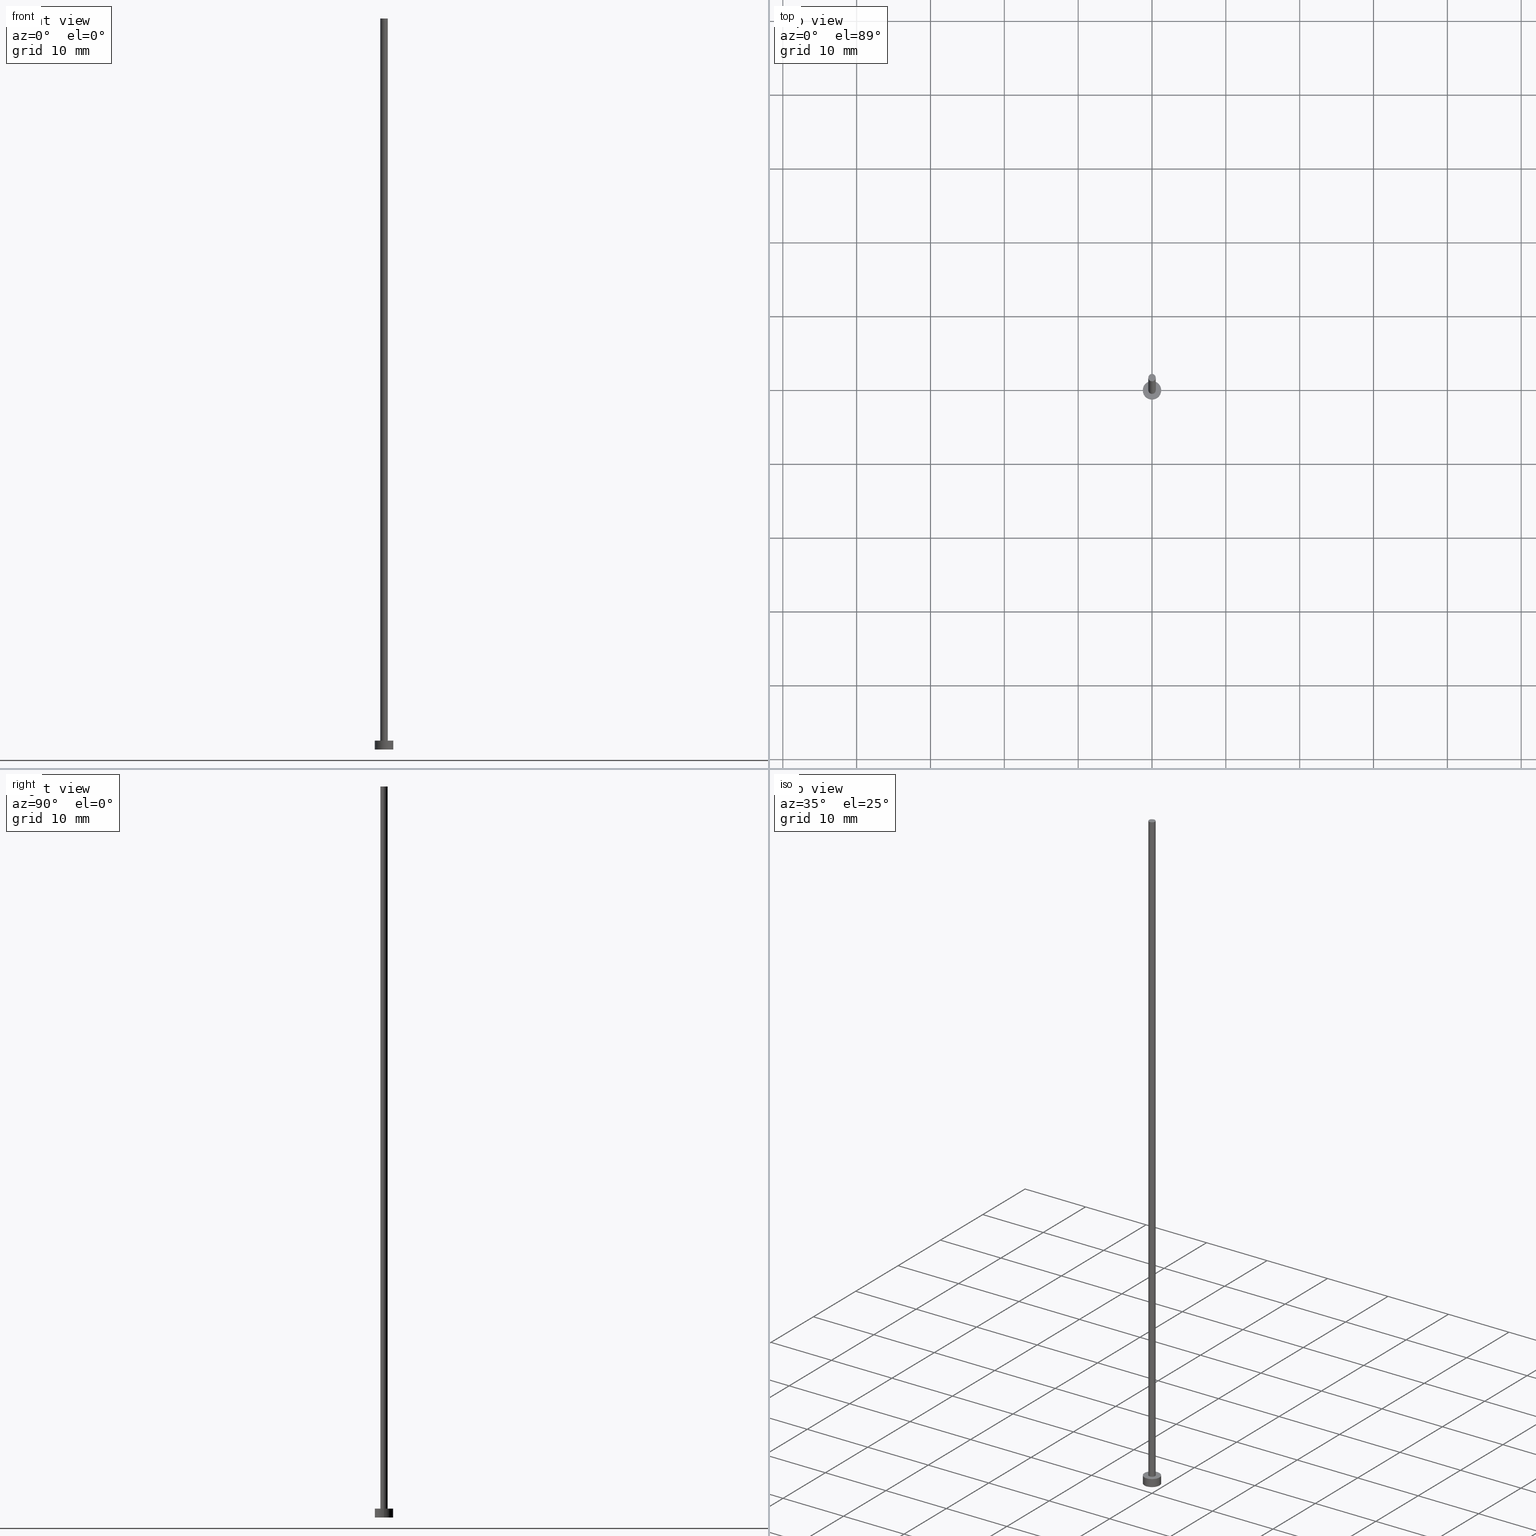
[diagram: canonical four-view strip — front | top / right | iso, engineering-drawing reading convention]
A machine part, canonical four-view strip (front | top / right | iso — engineering-drawing reading convention). The complete STEP part file that produces these views, byte-faithful:
ISO-10303-21;
HEADER;
FILE_DESCRIPTION (( 'STEP AP203' ),
    '1' );
FILE_NAME ('2e49.STEP',
    '2023-03-07T08:00:46',
    ( '' ),
    ( '' ),
    'SwSTEP 2.0',
    'SolidWorks 2019',
    '' );
FILE_SCHEMA (( 'CONFIG_CONTROL_DESIGN' ));
ENDSEC;

DATA;
#1 = PERSON_AND_ORGANIZATION ( #62, #236 ) ;
#2 = DIRECTION ( 'NONE',  ( 1.000000000000000000, 0.000000000000000000, 0.000000000000000000 ) ) ;
#3 = CIRCLE ( 'NONE', #40, 0.5000000000000000000 ) ;
#4 = ORIENTED_EDGE ( 'NONE', *, *, #144, .F. ) ;
#5 = ORIENTED_EDGE ( 'NONE', *, *, #92, .T. ) ;
#6 = VECTOR ( 'NONE', #154, 1000.000000000000000 ) ;
#7 = ADVANCED_FACE ( 'NONE', ( #123 ), #51, .T. ) ;
#8 = DIRECTION ( 'NONE',  ( -1.000000000000000000, 0.000000000000000000, 0.000000000000000000 ) ) ;
#9 = AXIS2_PLACEMENT_3D ( 'NONE', #153, #234, #247 ) ;
#10 = DIRECTION ( 'NONE',  ( -0.000000000000000000, -0.000000000000000000, -1.000000000000000000 ) ) ;
#11 = VERTEX_POINT ( 'NONE', #86 ) ;
#12 = APPROVAL ( #160, 'NEUR�EN�' ) ;
#13 = DIRECTION ( 'NONE',  ( 1.000000000000000000, 0.000000000000000000, 0.000000000000000000 ) ) ;
#14 = SECURITY_CLASSIFICATION ( '', '', #77 ) ;
#15 = CARTESIAN_POINT ( 'NONE',  ( -1.250000000000000000, 0.000000000000000000, 0.000000000000000000 ) ) ;
#16 = FACE_OUTER_BOUND ( 'NONE', #224, .T. ) ;
#17 = MANIFOLD_SOLID_BREP ( 'P�idat vysunut�m3', #212 ) ;
#18 = ADVANCED_FACE ( 'NONE', ( #165 ), #87, .T. ) ;
#19 = DIRECTION ( 'NONE',  ( -0.000000000000000000, -0.000000000000000000, -1.000000000000000000 ) ) ;
#20 = CARTESIAN_POINT ( 'NONE',  ( -1.250000000000000000, 0.000000000000000000, 1.199999999999999956 ) ) ;
#21 = EDGE_CURVE ( 'NONE', #11, #207, #54, .T. ) ;
#22 = DATE_TIME_ROLE ( 'classification_date' ) ;
#23 = PRODUCT_DEFINITION ( 'NEZN�M�', '', #181, #73 ) ;
#24 =( NAMED_UNIT ( * ) SI_UNIT ( $, .STERADIAN. ) SOLID_ANGLE_UNIT ( ) );
#25 = AXIS2_PLACEMENT_3D ( 'NONE', #133, #61, #2 ) ;
#26 = ADVANCED_BREP_SHAPE_REPRESENTATION ( '2e49', ( #17, #80 ), #244 ) ;
#27 = ORIENTED_EDGE ( 'NONE', *, *, #49, .T. ) ;
#28 = CALENDAR_DATE ( 2023, 7, 3 ) ;
#29 = ORIENTED_EDGE ( 'NONE', *, *, #205, .T. ) ;
#30 = ORIENTED_EDGE ( 'NONE', *, *, #21, .F. ) ;
#31 = ORIENTED_EDGE ( 'NONE', *, *, #56, .T. ) ;
#32 = CC_DESIGN_APPROVAL ( #126, ( #14 ) ) ;
#33 = EDGE_LOOP ( 'NONE', ( #29, #141 ) ) ;
#34 = DIRECTION ( 'NONE',  ( -1.000000000000000000, 0.000000000000000000, 0.000000000000000000 ) ) ;
#35 = PRODUCT_DEFINITION_SHAPE ( 'NONE', 'NONE',  #23 ) ;
#36 = CARTESIAN_POINT ( 'NONE',  ( 0.000000000000000000, 0.000000000000000000, 99.00000000000000000 ) ) ;
#37 = DIRECTION ( 'NONE',  ( -1.000000000000000000, 0.000000000000000000, 0.000000000000000000 ) ) ;
#38 = CYLINDRICAL_SURFACE ( 'NONE', #248, 0.5000000000000000000 ) ;
#39 = PLANE ( 'NONE',  #57 ) ;
#40 = AXIS2_PLACEMENT_3D ( 'NONE', #197, #76, #79 ) ;
#41 = PERSON_AND_ORGANIZATION_ROLE ( 'design_supplier' ) ;
#42 = CALENDAR_DATE ( 2023, 7, 3 ) ;
#43 = APPROVAL_DATE_TIME ( #115, #12 ) ;
#44 = CIRCLE ( 'NONE', #146, 1.250000000000000000 ) ;
#45 = ADVANCED_FACE ( 'NONE', ( #231 ), #111, .F. ) ;
#46 = COORDINATED_UNIVERSAL_TIME_OFFSET ( 1, 0, .AHEAD. ) ;
#47 = CALENDAR_DATE ( 2023, 7, 3 ) ;
#48 = VERTEX_POINT ( 'NONE', #15 ) ;
#49 = EDGE_CURVE ( 'NONE', #11, #225, #230, .T. ) ;
#50 = ORIENTED_EDGE ( 'NONE', *, *, #241, .T. ) ;
#51 = CYLINDRICAL_SURFACE ( 'NONE', #99, 0.5000000000000000000 ) ;
#52 = ORIENTED_EDGE ( 'NONE', *, *, #205, .F. ) ;
#53 = CARTESIAN_POINT ( 'NONE',  ( -0.5000000000000000000, 0.000000000000000000, 1.199999999999999956 ) ) ;
#54 = CIRCLE ( 'NONE', #217, 1.250000000000000000 ) ;
#55 = DIRECTION ( 'NONE',  ( 0.000000000000000000, 0.000000000000000000, 1.000000000000000000 ) ) ;
#56 = EDGE_CURVE ( 'NONE', #201, #187, #169, .T. ) ;
#57 = AXIS2_PLACEMENT_3D ( 'NONE', #94, #194, #75 ) ;
#58 = DIRECTION ( 'NONE',  ( 0.000000000000000000, 0.000000000000000000, 1.000000000000000000 ) ) ;
#59 = LINE ( 'NONE', #20, #172 ) ;
#60 = CIRCLE ( 'NONE', #9, 0.5000000000000000000 ) ;
#61 = DIRECTION ( 'NONE',  ( 0.000000000000000000, 0.000000000000000000, 1.000000000000000000 ) ) ;
#62 = PERSON ( 'NEUR�EN�', 'NEUR�EN�', 'NEUR�EN�', ('NEUR�EN�'), ('NEUR�EN�'), ('NEUR�EN�') ) ;
#63 = APPROVAL_ROLE ( '' ) ;
#64 = ORIENTED_EDGE ( 'NONE', *, *, #183, .F. ) ;
#65 = APPROVAL_PERSON_ORGANIZATION ( #1, #12, #63 ) ;
#66 = ORIENTED_EDGE ( 'NONE', *, *, #21, .T. ) ;
#67 = AXIS2_PLACEMENT_3D ( 'NONE', #69, #193, #173 ) ;
#68 = EDGE_LOOP ( 'NONE', ( #239, #167, #149, #83 ) ) ;
#69 = CARTESIAN_POINT ( 'NONE',  ( 0.000000000000000000, 0.000000000000000000, 1.199999999999999956 ) ) ;
#70 = CARTESIAN_POINT ( 'NONE',  ( 0.5000000000000000000, 6.123233995736766036E-17, 99.00000000000000000 ) ) ;
#71 = AXIS2_PLACEMENT_3D ( 'NONE', #191, #174, #72 ) ;
#72 = DIRECTION ( 'NONE',  ( 1.000000000000000000, 0.000000000000000000, 0.000000000000000000 ) ) ;
#73 = DESIGN_CONTEXT ( 'detailed design', #151, 'design' ) ;
#74 = CARTESIAN_POINT ( 'NONE',  ( -1.250000000000000000, 0.000000000000000000, 1.199999999999999956 ) ) ;
#75 = DIRECTION ( 'NONE',  ( 1.000000000000000000, 0.000000000000000000, -0.000000000000000000 ) ) ;
#76 = DIRECTION ( 'NONE',  ( 0.000000000000000000, 0.000000000000000000, 1.000000000000000000 ) ) ;
#77 = SECURITY_CLASSIFICATION_LEVEL ( 'unclassified' ) ;
#78 = APPROVAL_STATUS ( 'not_yet_approved' ) ;
#79 = DIRECTION ( 'NONE',  ( 1.000000000000000000, 0.000000000000000000, 0.000000000000000000 ) ) ;
#80 = AXIS2_PLACEMENT_3D ( 'NONE', #200, #219, #252 ) ;
#81 = PERSON_AND_ORGANIZATION ( #62, #236 ) ;
#82 = EDGE_CURVE ( 'NONE', #48, #225, #44, .T. ) ;
#83 = ORIENTED_EDGE ( 'NONE', *, *, #82, .T. ) ;
#84 = CC_DESIGN_APPROVAL ( #136, ( #23 ) ) ;
#85 = CC_DESIGN_PERSON_AND_ORGANIZATION_ASSIGNMENT ( #81, #180, ( #23 ) ) ;
#86 = CARTESIAN_POINT ( 'NONE',  ( 1.250000000000000000, 1.530808498934191571E-16, 1.199999999999999956 ) ) ;
#87 = CYLINDRICAL_SURFACE ( 'NONE', #179, 1.250000000000000000 ) ;
#88 = PRODUCT ( '2e49', '2e49', '', ( #178 ) ) ;
#89 = PERSON_AND_ORGANIZATION ( #62, #236 ) ;
#90 = FACE_OUTER_BOUND ( 'NONE', #102, .T. ) ;
#91 = LOCAL_TIME ( 9, 0, 46.00000000000000000, #223 ) ;
#92 = EDGE_CURVE ( 'NONE', #207, #11, #185, .T. ) ;
#93 = CARTESIAN_POINT ( 'NONE',  ( 0.000000000000000000, 0.000000000000000000, 0.000000000000000000 ) ) ;
#94 = CARTESIAN_POINT ( 'NONE',  ( 0.000000000000000000, 0.000000000000000000, 1.199999999999999956 ) ) ;
#95 = CARTESIAN_POINT ( 'NONE',  ( 0.5000000000000000000, 6.123233995736766036E-17, 99.00000000000000000 ) ) ;
#96 = CARTESIAN_POINT ( 'NONE',  ( 1.250000000000000000, 1.530808498934191571E-16, 1.199999999999999956 ) ) ;
#97 = PERSON_AND_ORGANIZATION_ROLE ( 'creator' ) ;
#98 = PERSON_AND_ORGANIZATION_ROLE ( 'design_owner' ) ;
#99 = AXIS2_PLACEMENT_3D ( 'NONE', #105, #10, #8 ) ;
#100 = CC_DESIGN_DATE_AND_TIME_ASSIGNMENT ( #198, #22, ( #14 ) ) ;
#101 = PERSON_AND_ORGANIZATION ( #62, #236 ) ;
#102 = EDGE_LOOP ( 'NONE', ( #209, #31, #186, #64 ) ) ;
#103 = APPROVAL_STATUS ( 'not_yet_approved' ) ;
#104 = EDGE_LOOP ( 'NONE', ( #164, #189 ) ) ;
#105 = CARTESIAN_POINT ( 'NONE',  ( 0.000000000000000000, 0.000000000000000000, 99.00000000000000000 ) ) ;
#106 = VERTEX_POINT ( 'NONE', #155 ) ;
#107 = CARTESIAN_POINT ( 'NONE',  ( 0.000000000000000000, 0.000000000000000000, 1.199999999999999956 ) ) ;
#108 = DIRECTION ( 'NONE',  ( 1.000000000000000000, 0.000000000000000000, 0.000000000000000000 ) ) ;
#109 = FACE_BOUND ( 'NONE', #104, .T. ) ;
#110 = CC_DESIGN_PERSON_AND_ORGANIZATION_ASSIGNMENT ( #158, #118, ( #14 ) ) ;
#111 = PLANE ( 'NONE',  #156 ) ;
#112 = VECTOR ( 'NONE', #214, 1000.000000000000000 ) ;
#113 = CARTESIAN_POINT ( 'NONE',  ( 0.000000000000000000, 0.000000000000000000, 99.00000000000000000 ) ) ;
#114 = AXIS2_PLACEMENT_3D ( 'NONE', #36, #55, #108 ) ;
#115 = DATE_AND_TIME ( #140, #161 ) ;
#116 = CC_DESIGN_PERSON_AND_ORGANIZATION_ASSIGNMENT ( #119, #97, ( #181 ) ) ;
#117 = CALENDAR_DATE ( 2023, 7, 3 ) ;
#118 = PERSON_AND_ORGANIZATION_ROLE ( 'classification_officer' ) ;
#119 = PERSON_AND_ORGANIZATION ( #62, #236 ) ;
#120 = CC_DESIGN_APPROVAL ( #12, ( #181 ) ) ;
#121 = VERTEX_POINT ( 'NONE', #53 ) ;
#122 = APPROVAL_DATE_TIME ( #188, #126 ) ;
#123 = FACE_OUTER_BOUND ( 'NONE', #243, .T. ) ;
#124 = ADVANCED_FACE ( 'NONE', ( #90 ), #38, .T. ) ;
#125 = ORIENTED_EDGE ( 'NONE', *, *, #82, .F. ) ;
#126 = APPROVAL ( #103, 'NEUR�EN�' ) ;
#127 = CARTESIAN_POINT ( 'NONE',  ( 1.250000000000000000, 1.530808498934191571E-16, 0.000000000000000000 ) ) ;
#128 = CARTESIAN_POINT ( 'NONE',  ( 0.5000000000000000000, 6.123233995736766036E-17, 1.199999999999999956 ) ) ;
#129 = DIRECTION ( 'NONE',  ( 1.000000000000000000, 0.000000000000000000, -0.000000000000000000 ) ) ;
#130 = CIRCLE ( 'NONE', #199, 1.250000000000000000 ) ;
#131 = FACE_OUTER_BOUND ( 'NONE', #184, .T. ) ;
#132 = DIRECTION ( 'NONE',  ( 0.000000000000000000, 0.000000000000000000, 1.000000000000000000 ) ) ;
#133 = CARTESIAN_POINT ( 'NONE',  ( 0.000000000000000000, 0.000000000000000000, 1.199999999999999956 ) ) ;
#134 = VECTOR ( 'NONE', #210, 1000.000000000000000 ) ;
#135 = DATE_AND_TIME ( #47, #203 ) ;
#136 = APPROVAL ( #78, 'NEUR�EN�' ) ;
#137 = APPLICATION_CONTEXT ( 'configuration controlled 3d designs of mechanical parts and assemblies' ) ;
#138 = APPLICATION_PROTOCOL_DEFINITION ( 'international standard', 'config_control_design', 1994, #137 ) ;
#139 = APPLICATION_PROTOCOL_DEFINITION ( 'international standard', 'config_control_design', 1994, #151 ) ;
#140 = CALENDAR_DATE ( 2023, 7, 3 ) ;
#141 = ORIENTED_EDGE ( 'NONE', *, *, #253, .T. ) ;
#142 = CIRCLE ( 'NONE', #25, 0.5000000000000000000 ) ;
#143 = ORIENTED_EDGE ( 'NONE', *, *, #56, .F. ) ;
#144 = EDGE_CURVE ( 'NONE', #207, #48, #59, .T. ) ;
#145 = DIRECTION ( 'NONE',  ( -0.000000000000000000, -0.000000000000000000, -1.000000000000000000 ) ) ;
#146 = AXIS2_PLACEMENT_3D ( 'NONE', #232, #58, #13 ) ;
#147 = ADVANCED_FACE ( 'NONE', ( #131 ), #192, .T. ) ;
#148 = LOCAL_TIME ( 9, 0, 46.00000000000000000, #218 ) ;
#149 = ORIENTED_EDGE ( 'NONE', *, *, #144, .T. ) ;
#150 = DIRECTION ( 'NONE',  ( 1.000000000000000000, 0.000000000000000000, 0.000000000000000000 ) ) ;
#151 = APPLICATION_CONTEXT ( 'configuration controlled 3d designs of mechanical parts and assemblies' ) ;
#152 = CARTESIAN_POINT ( 'NONE',  ( 0.000000000000000000, 0.000000000000000000, 99.00000000000000000 ) ) ;
#153 = CARTESIAN_POINT ( 'NONE',  ( 0.000000000000000000, 0.000000000000000000, 1.199999999999999956 ) ) ;
#154 = DIRECTION ( 'NONE',  ( -0.000000000000000000, -0.000000000000000000, -1.000000000000000000 ) ) ;
#155 = CARTESIAN_POINT ( 'NONE',  ( -0.5000000000000000000, 0.000000000000000000, 99.00000000000000000 ) ) ;
#156 = AXIS2_PLACEMENT_3D ( 'NONE', #216, #215, #129 ) ;
#157 = ADVANCED_FACE ( 'NONE', ( #251 ), #170, .T. ) ;
#158 = PERSON_AND_ORGANIZATION ( #62, #236 ) ;
#159 =( NAMED_UNIT ( * ) PLANE_ANGLE_UNIT ( ) SI_UNIT ( $, .RADIAN. ) );
#160 = APPROVAL_STATUS ( 'not_yet_approved' ) ;
#161 = LOCAL_TIME ( 9, 0, 46.00000000000000000, #46 ) ;
#162 = DATE_TIME_ROLE ( 'creation_date' ) ;
#163 = APPROVAL_ROLE ( '' ) ;
#164 = ORIENTED_EDGE ( 'NONE', *, *, #241, .F. ) ;
#165 = FACE_OUTER_BOUND ( 'NONE', #68, .T. ) ;
#166 = SHAPE_DEFINITION_REPRESENTATION ( #35, #26 ) ;
#167 = ORIENTED_EDGE ( 'NONE', *, *, #92, .F. ) ;
#168 = LOCAL_TIME ( 9, 0, 46.00000000000000000, #238 ) ;
#169 = LINE ( 'NONE', #95, #6 ) ;
#170 = PLANE ( 'NONE',  #206 ) ;
#171 = DIRECTION ( 'NONE',  ( 1.000000000000000000, 0.000000000000000000, -0.000000000000000000 ) ) ;
#172 = VECTOR ( 'NONE', #245, 1000.000000000000000 ) ;
#173 = DIRECTION ( 'NONE',  ( -1.000000000000000000, 0.000000000000000000, 0.000000000000000000 ) ) ;
#174 = DIRECTION ( 'NONE',  ( 0.000000000000000000, 0.000000000000000000, 1.000000000000000000 ) ) ;
#175 = EDGE_CURVE ( 'NONE', #225, #48, #130, .T. ) ;
#176 = APPROVAL_DATE_TIME ( #135, #136 ) ;
#177 = PERSON_AND_ORGANIZATION ( #62, #236 ) ;
#178 = MECHANICAL_CONTEXT ( 'NONE', #137, 'mechanical' ) ;
#179 = AXIS2_PLACEMENT_3D ( 'NONE', #242, #145, #34 ) ;
#180 = PERSON_AND_ORGANIZATION_ROLE ( 'creator' ) ;
#181 = PRODUCT_DEFINITION_FORMATION_WITH_SPECIFIED_SOURCE ( 'LIBOVOLN�', '', #88, .NOT_KNOWN. ) ;
#182 = ORIENTED_EDGE ( 'NONE', *, *, #183, .T. ) ;
#183 = EDGE_CURVE ( 'NONE', #106, #121, #235, .T. ) ;
#184 = EDGE_LOOP ( 'NONE', ( #30, #27, #204, #4 ) ) ;
#185 = CIRCLE ( 'NONE', #71, 1.250000000000000000 ) ;
#186 = ORIENTED_EDGE ( 'NONE', *, *, #213, .T. ) ;
#187 = VERTEX_POINT ( 'NONE', #128 ) ;
#188 = DATE_AND_TIME ( #28, #91 ) ;
#189 = ORIENTED_EDGE ( 'NONE', *, *, #213, .F. ) ;
#190 = DIRECTION ( 'NONE',  ( 1.000000000000000000, 0.000000000000000000, 0.000000000000000000 ) ) ;
#191 = CARTESIAN_POINT ( 'NONE',  ( 0.000000000000000000, 0.000000000000000000, 1.199999999999999956 ) ) ;
#192 = CYLINDRICAL_SURFACE ( 'NONE', #67, 1.250000000000000000 ) ;
#193 = DIRECTION ( 'NONE',  ( -0.000000000000000000, -0.000000000000000000, -1.000000000000000000 ) ) ;
#194 = DIRECTION ( 'NONE',  ( 0.000000000000000000, 0.000000000000000000, 1.000000000000000000 ) ) ;
#195 = CC_DESIGN_PERSON_AND_ORGANIZATION_ASSIGNMENT ( #221, #41, ( #181 ) ) ;
#196 = APPROVAL_ROLE ( '' ) ;
#197 = CARTESIAN_POINT ( 'NONE',  ( 0.000000000000000000, 0.000000000000000000, 99.00000000000000000 ) ) ;
#198 = DATE_AND_TIME ( #117, #168 ) ;
#199 = AXIS2_PLACEMENT_3D ( 'NONE', #93, #250, #150 ) ;
#200 = CARTESIAN_POINT ( 'NONE',  ( 0.000000000000000000, 0.000000000000000000, 0.000000000000000000 ) ) ;
#201 = VERTEX_POINT ( 'NONE', #70 ) ;
#202 = CC_DESIGN_DATE_AND_TIME_ASSIGNMENT ( #254, #162, ( #23 ) ) ;
#203 = LOCAL_TIME ( 9, 0, 46.00000000000000000, #255 ) ;
#204 = ORIENTED_EDGE ( 'NONE', *, *, #175, .T. ) ;
#205 = EDGE_CURVE ( 'NONE', #106, #201, #249, .T. ) ;
#206 = AXIS2_PLACEMENT_3D ( 'NONE', #152, #211, #171 ) ;
#207 = VERTEX_POINT ( 'NONE', #74 ) ;
#208 = APPROVAL_PERSON_ORGANIZATION ( #177, #136, #196 ) ;
#209 = ORIENTED_EDGE ( 'NONE', *, *, #253, .F. ) ;
#210 = DIRECTION ( 'NONE',  ( -0.000000000000000000, -0.000000000000000000, -1.000000000000000000 ) ) ;
#211 = DIRECTION ( 'NONE',  ( 0.000000000000000000, 0.000000000000000000, 1.000000000000000000 ) ) ;
#212 = CLOSED_SHELL ( 'NONE', ( #124, #147, #18, #220, #45, #7, #157 ) ) ;
#213 = EDGE_CURVE ( 'NONE', #187, #121, #60, .T. ) ;
#214 = DIRECTION ( 'NONE',  ( -0.000000000000000000, -0.000000000000000000, -1.000000000000000000 ) ) ;
#215 = DIRECTION ( 'NONE',  ( 0.000000000000000000, 0.000000000000000000, 1.000000000000000000 ) ) ;
#216 = CARTESIAN_POINT ( 'NONE',  ( 0.000000000000000000, 0.000000000000000000, 0.000000000000000000 ) ) ;
#217 = AXIS2_PLACEMENT_3D ( 'NONE', #107, #132, #190 ) ;
#218 = COORDINATED_UNIVERSAL_TIME_OFFSET ( 1, 0, .AHEAD. ) ;
#219 = DIRECTION ( 'NONE',  ( 0.000000000000000000, 0.000000000000000000, 1.000000000000000000 ) ) ;
#220 = ADVANCED_FACE ( 'NONE', ( #109, #16 ), #39, .T. ) ;
#221 = PERSON_AND_ORGANIZATION ( #62, #236 ) ;
#222 = PRODUCT_RELATED_PRODUCT_CATEGORY ( 'detail', '', ( #88 ) ) ;
#223 = COORDINATED_UNIVERSAL_TIME_OFFSET ( 1, 0, .AHEAD. ) ;
#224 = EDGE_LOOP ( 'NONE', ( #5, #66 ) ) ;
#225 = VERTEX_POINT ( 'NONE', #127 ) ;
#226 = ORIENTED_EDGE ( 'NONE', *, *, #175, .F. ) ;
#227 = APPROVAL_PERSON_ORGANIZATION ( #89, #126, #163 ) ;
#228 = EDGE_LOOP ( 'NONE', ( #125, #226 ) ) ;
#229 = CC_DESIGN_PERSON_AND_ORGANIZATION_ASSIGNMENT ( #101, #98, ( #88 ) ) ;
#230 = LINE ( 'NONE', #96, #112 ) ;
#231 = FACE_OUTER_BOUND ( 'NONE', #228, .T. ) ;
#232 = CARTESIAN_POINT ( 'NONE',  ( 0.000000000000000000, 0.000000000000000000, 0.000000000000000000 ) ) ;
#233 = UNCERTAINTY_MEASURE_WITH_UNIT (LENGTH_MEASURE( 1.000000000000000082E-05 ), #237, 'distance_accuracy_value', 'NONE');
#234 = DIRECTION ( 'NONE',  ( 0.000000000000000000, 0.000000000000000000, 1.000000000000000000 ) ) ;
#235 = LINE ( 'NONE', #246, #134 ) ;
#236 = ORGANIZATION ( 'NEUR�EN�', 'NEUR�EN�', '' ) ;
#237 =( LENGTH_UNIT ( ) NAMED_UNIT ( * ) SI_UNIT ( .MILLI., .METRE. ) );
#238 = COORDINATED_UNIVERSAL_TIME_OFFSET ( 1, 0, .AHEAD. ) ;
#239 = ORIENTED_EDGE ( 'NONE', *, *, #49, .F. ) ;
#240 = CC_DESIGN_SECURITY_CLASSIFICATION ( #14, ( #181 ) ) ;
#241 = EDGE_CURVE ( 'NONE', #121, #187, #142, .T. ) ;
#242 = CARTESIAN_POINT ( 'NONE',  ( 0.000000000000000000, 0.000000000000000000, 1.199999999999999956 ) ) ;
#243 = EDGE_LOOP ( 'NONE', ( #143, #52, #182, #50 ) ) ;
#244 =( GEOMETRIC_REPRESENTATION_CONTEXT ( 3 ) GLOBAL_UNCERTAINTY_ASSIGNED_CONTEXT ( ( #233 ) ) GLOBAL_UNIT_ASSIGNED_CONTEXT ( ( #237, #159, #24 ) ) REPRESENTATION_CONTEXT ( 'NONE', 'WORKASPACE' ) );
#245 = DIRECTION ( 'NONE',  ( -0.000000000000000000, -0.000000000000000000, -1.000000000000000000 ) ) ;
#246 = CARTESIAN_POINT ( 'NONE',  ( -0.5000000000000000000, 0.000000000000000000, 99.00000000000000000 ) ) ;
#247 = DIRECTION ( 'NONE',  ( 1.000000000000000000, 0.000000000000000000, 0.000000000000000000 ) ) ;
#248 = AXIS2_PLACEMENT_3D ( 'NONE', #113, #19, #37 ) ;
#249 = CIRCLE ( 'NONE', #114, 0.5000000000000000000 ) ;
#250 = DIRECTION ( 'NONE',  ( 0.000000000000000000, 0.000000000000000000, 1.000000000000000000 ) ) ;
#251 = FACE_OUTER_BOUND ( 'NONE', #33, .T. ) ;
#252 = DIRECTION ( 'NONE',  ( 1.000000000000000000, 0.000000000000000000, 0.000000000000000000 ) ) ;
#253 = EDGE_CURVE ( 'NONE', #201, #106, #3, .T. ) ;
#254 = DATE_AND_TIME ( #42, #148 ) ;
#255 = COORDINATED_UNIVERSAL_TIME_OFFSET ( 1, 0, .AHEAD. ) ;
ENDSEC;
END-ISO-10303-21;
